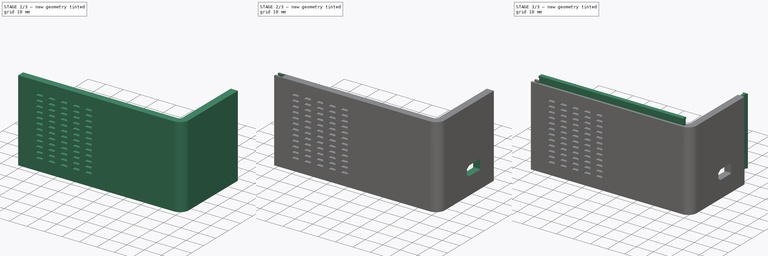
[diagram: build sequence overview — one tinted view per stage of 3, left to right]
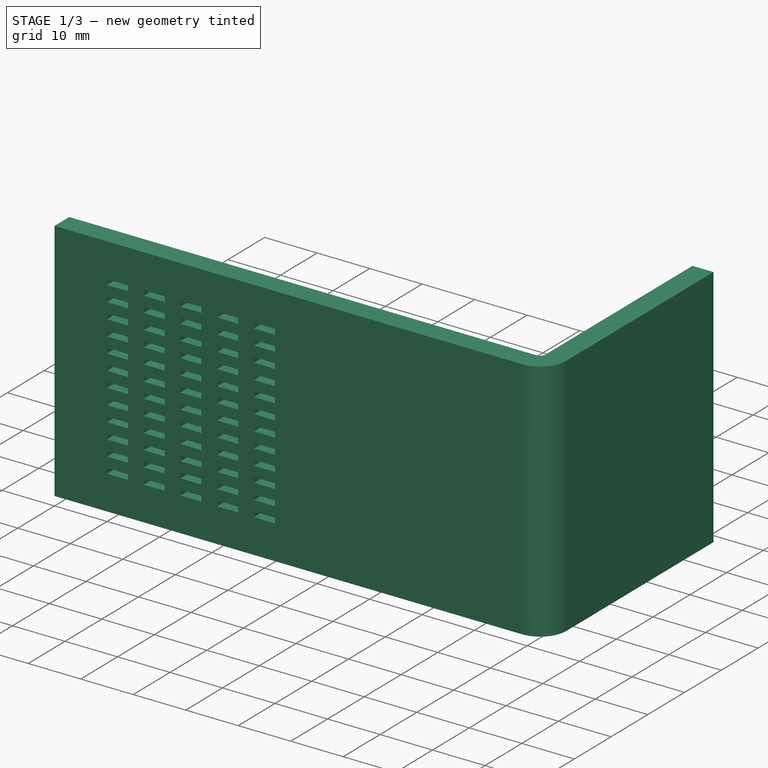
[diagram: stage 1 of 3 — iso view after this stage's code; geometry added in this stage tinted green]
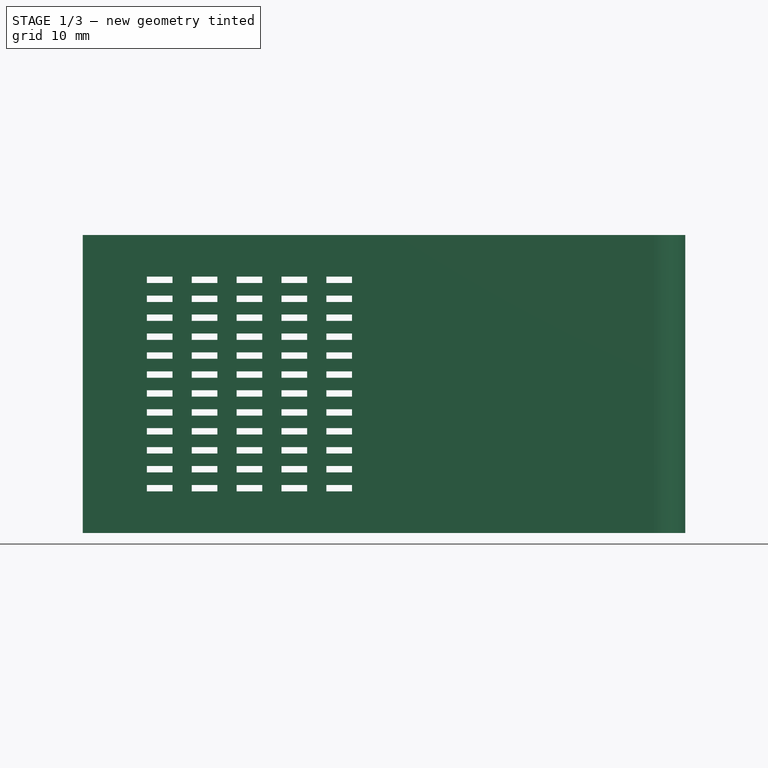
[diagram: stage 1 of 3 — front view after this stage's code; geometry added in this stage tinted green]
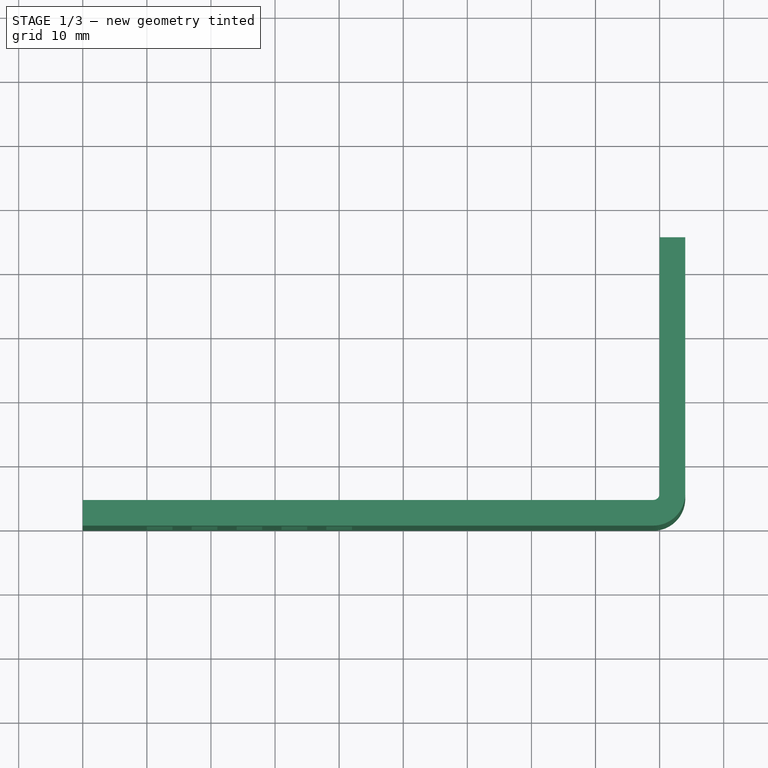
[diagram: stage 1 of 3 — top view after this stage's code; geometry added in this stage tinted green]
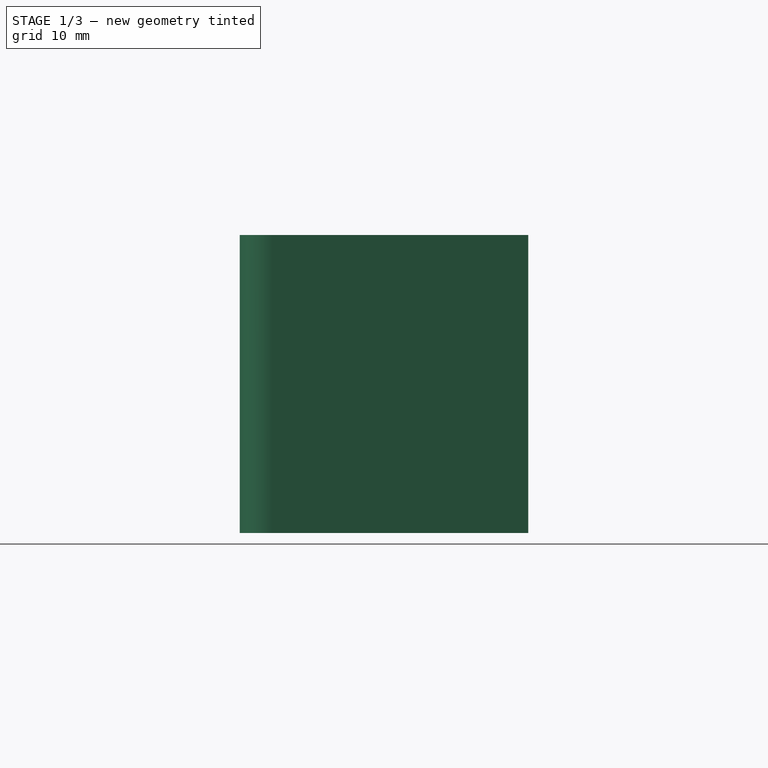
[diagram: stage 1 of 3 — right view after this stage's code; geometry added in this stage tinted green]
FCSTD DOCUMENT  (FreeCAD 1.0R38641 +468 (Git))
Label: EC-Box-Side-L
License: All rights reserved
LicenseURL: https://en.wikipedia.org/wiki/All_rights_reserved
objects: Sketcher::SketchObject×7, PartDesign::Pocket×4, PartDesign::Pad×3, PartDesign::LinearPattern×2, PartDesign::MultiTransform×1, PartDesign::Body×1
note: 42 computed .brp shape members not serialized (recipe doc carries the construction recipe); baked Part::Feature solids carry a one-line shape summary decoded from their .brp

FEATURE [Sketcher::SketchObject] Sketch117  label="side-wall-l"
  ArcFitTolerance = 1e-06
  AttachmentSupport = -> [XY_Plane014]
  FullyConstrained = true
  MakeInternals = false
  MapMode = 5
  sketch-geometry (8):
    g0: LineSegment StartX=0 StartY=0 StartZ=0 EndX=89 EndY=0 EndZ=0
    g1: LineSegment StartX=0 StartY=0 StartZ=0 EndX=0 EndY=4 EndZ=0
    g2: LineSegment StartX=0 StartY=4 StartZ=0 EndX=89 EndY=4 EndZ=0
    g3: ArcOfCircle CenterX=89 CenterY=5 CenterZ=0 NormalX=0 NormalY=0 NormalZ=1 AngleXU=0 Radius=1 StartAngle=4.71239 EndAngle=6.28318
    g4: ArcOfCircle CenterX=89 CenterY=5 CenterZ=0 NormalX=0 NormalY=0 NormalZ=1 AngleXU=0 Radius=5 StartAngle=4.71239 EndAngle=6.28319
    g5: LineSegment StartX=90 StartY=5 StartZ=0 EndX=90 EndY=45 EndZ=0
    g6: LineSegment StartX=94 StartY=5 StartZ=0 EndX=94 EndY=45 EndZ=0
    g7: LineSegment StartX=90 StartY=45 StartZ=0 EndX=94 EndY=45 EndZ=0
  constraints (25):
    c: Distance(g0) = 89
    c: Coincident(g0,g-1)
    c: PointOnObject(g0,g-1)
    c: Distance(g1) = 4
    c: Coincident(g1,g0)
    c: PointOnObject(g1,g-2)
    c: Distance(g2) = 89
    c: Coincident(g2,g1)
    c: Horizontal(g2)
    c: Angle(g3) = 1.5708
    c: Coincident(g3,g2)
    c: Angle(g4) = 1.5708
    c: Coincident(g4,g0)
    c: DistanceX(g3,g3) = 1
    c: DistanceX(g3,g4) = 5
    c: DistanceX(g0,g3) = 90
    c: DistanceY(g4) = 5
    c: Distance(g5) = 40
    c: Coincident(g5,g3)
    c: Vertical(g5)
    c: Distance(g6) = 40
    c: Coincident(g6,g4)
    c: Vertical(g6)
    c: Coincident(g7,g5)
    c: Coincident(g7,g6)
FEATURE [PartDesign::Pad] Pad058
  Direction = (0,0,1)
  Length = 46.5
  Length2 = 10
  Profile = -> Sketch117
  ReferenceAxis = -> Sketch117 [N_Axis]
  Refine = true
  Suppressed = false
  Type = 0
FEATURE [Sketcher::SketchObject] Sketch120  label="mazgal"
  ArcFitTolerance = 1e-06
  AttachmentSupport = -> [XZ_Plane014]
  FullyConstrained = false
  MakeInternals = false
  MapMode = 5
  Placement = pos=(0,0,0) rot=(1,0,0;1.5708rad)
  sketch-geometry (4):
    g0: LineSegment StartX=10 StartY=39 StartZ=0 EndX=10 EndY=40 EndZ=0
    g1: LineSegment StartX=10 StartY=40 StartZ=0 EndX=14 EndY=40 EndZ=0
    g2: LineSegment StartX=14 StartY=40 StartZ=0 EndX=14 EndY=39 EndZ=0
    g3: LineSegment StartX=14 StartY=39 StartZ=0 EndX=10 EndY=39 EndZ=0
  constraints (11):
    c: Coincident(g0,g1)
    c: Coincident(g1,g2)
    c: Coincident(g2,g3)
    c: Coincident(g3,g0)
    c: Vertical(g0)
    c: Vertical(g2)
    c: Horizontal(g1)
    c: Horizontal(g3)
    c: Distance(g0,g2) = 4
    c: Distance(g1,g3) = 1
    c: DistanceY(g-1,g0) = 40
FEATURE [PartDesign::LinearPattern] LinearPattern
  Direction = -> Sketch120 [H_Axis]
  Length = 28
  Mode = 0
  Occurrences = 5
  Offset = 7
  Refine = true
  Suppressed = false
  TransformMode = 0
FEATURE [PartDesign::LinearPattern] LinearPattern001
  Direction = -> Sketch120 [V_Axis]
  Length = 32.5
  Mode = 0
  Occurrences = 12
  Offset = 2.95455
  Refine = true
  Reversed = true
  Suppressed = false
  TransformMode = 0
FEATURE [PartDesign::Pocket] Pocket068
  BaseFeature = -> Pad058
  Direction = (0,1,-2e-16)
  Length = 5
  Length2 = 5
  Profile = -> Sketch120
  ReferenceAxis = -> Sketch120 [N_Axis]
  Refine = true
  Suppressed = false
  Type = 0
FEATURE [PartDesign::MultiTransform] MultiTransform
  BaseFeature = -> Pocket068
  Originals = -> [Pocket068]
  Refine = true
  Suppressed = false
  TransformMode = 0
  Transformations = -> [LinearPattern,LinearPattern001]
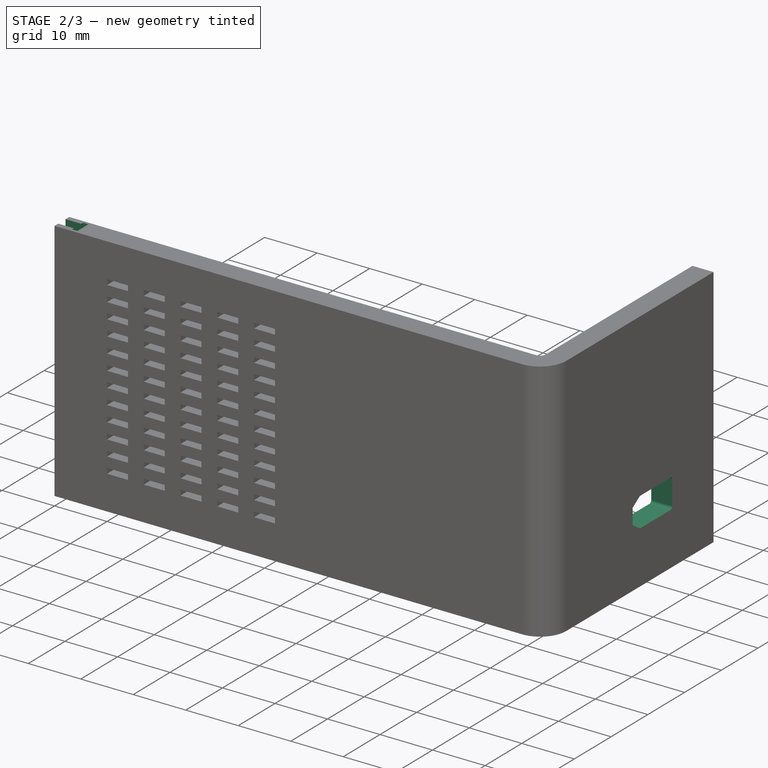
[diagram: stage 2 of 3 — iso view after this stage's code; geometry added in this stage tinted green]
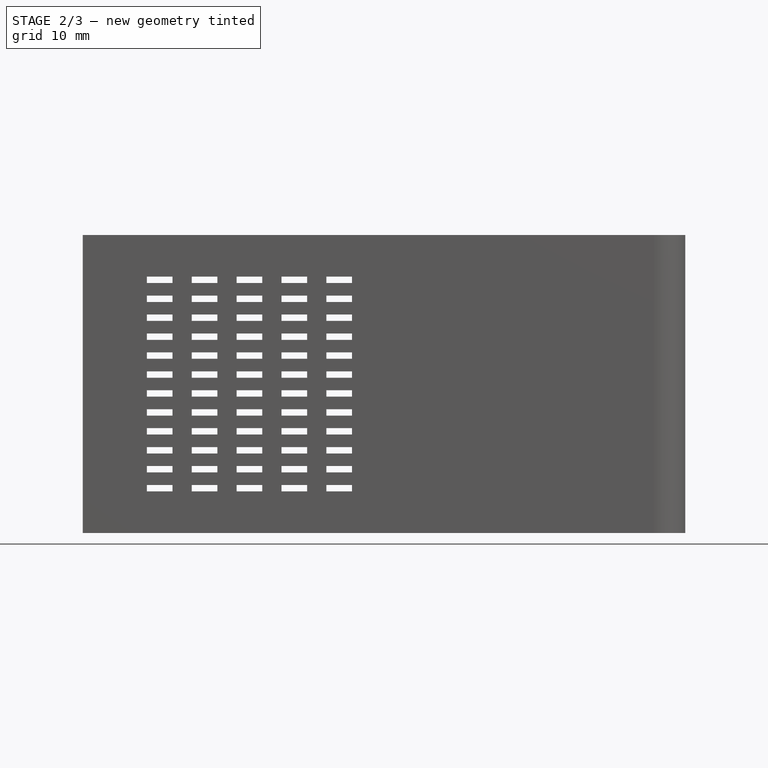
[diagram: stage 2 of 3 — front view after this stage's code; geometry added in this stage tinted green]
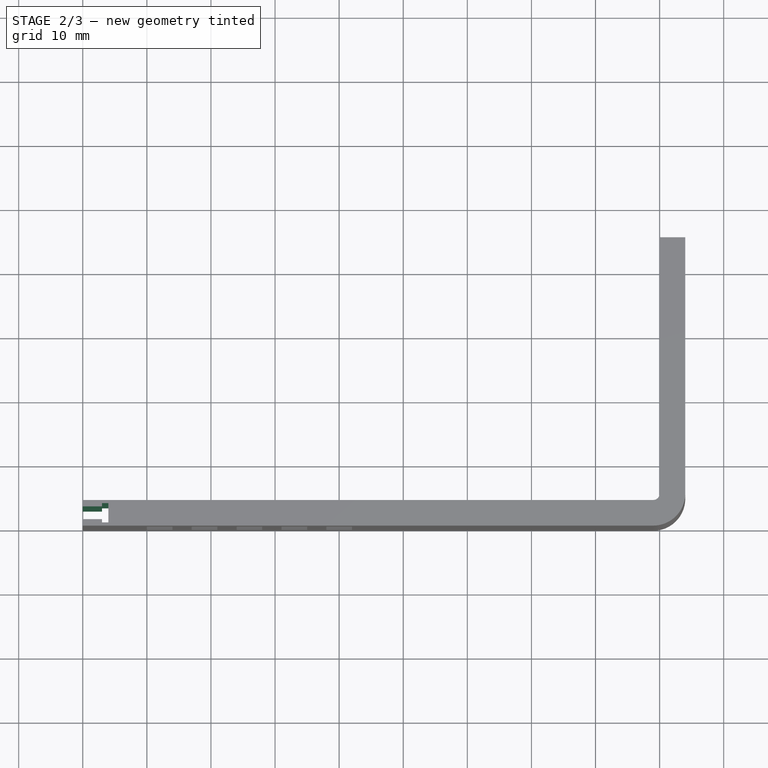
[diagram: stage 2 of 3 — top view after this stage's code; geometry added in this stage tinted green]
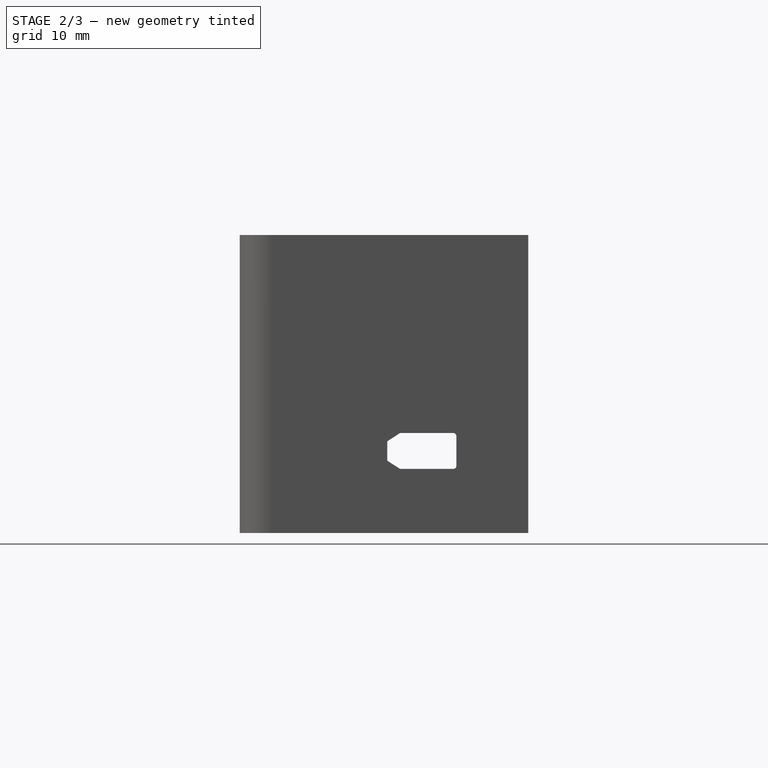
[diagram: stage 2 of 3 — right view after this stage's code; geometry added in this stage tinted green]
FEATURE [Sketcher::SketchObject] Sketch121  label="power-holes"
  ArcFitTolerance = 1e-06
  AttachmentSupport = -> [YZ_Plane014]
  FullyConstrained = true
  MakeInternals = false
  MapMode = 5
  Placement = pos=(0,0,0) rot=(0.57735,0.57735,0.57735;2.0944rad)
  sketch-geometry (10):
    g0: LineSegment StartX=25 StartY=10 StartZ=0 EndX=33.3 EndY=10 EndZ=0
    g1: LineSegment StartX=33.8 StartY=10.5 StartZ=0 EndX=33.8 EndY=15.1 EndZ=0
    g2: LineSegment StartX=33.3 StartY=15.6 StartZ=0 EndX=25 EndY=15.6 EndZ=0
    g3: ArcOfCircle CenterX=33.3 CenterY=15.1 CenterZ=0 NormalX=0 NormalY=0 NormalZ=1 AngleXU=0 Radius=0.5 StartAngle=5e-16 EndAngle=1.5708
    g4: GeomPoint [constr] X=33.8 Y=15.6 Z=0
    g5: ArcOfCircle CenterX=33.3 CenterY=10.5 CenterZ=0 NormalX=0 NormalY=0 NormalZ=1 AngleXU=0 Radius=0.5 StartAngle=4.71239 EndAngle=6.28319
    g6: GeomPoint [constr] X=33.8 Y=10 Z=0
    g7: LineSegment StartX=23 StartY=14.3 StartZ=0 EndX=23 EndY=11.3 EndZ=0
    g8: LineSegment StartX=25 StartY=15.6 StartZ=0 EndX=23 EndY=14.3 EndZ=0
    g9: LineSegment StartX=25 StartY=10 StartZ=0 EndX=23 EndY=11.3 EndZ=0
  constraints (26):
    c: Vertical(g1)
    c: Horizontal(g0)
    c: Horizontal(g2)
    c: PointOnObject(g4,g1)
    c: PointOnObject(g4,g2)
    c: Tangent(g1,g3) = -1.5708
    c: Tangent(g2,g3) = -1.5708
    c: PointOnObject(g6,g0)
    c: PointOnObject(g6,g1)
    c: Tangent(g0,g5) = -1.5708
    c: Tangent(g1,g5) = -1.5708
    c: DistanceY(g3,g2) = 0.5
    c: DistanceY(g0,g5) = 0.5
    c: Distance(g7) = 3
    c: Vertical(g7)
    c: DistanceX(g7,g2) = 2
    c: DistanceX(g7,g0) = 2
    c: DistanceX(g7,g4) = 10.8
    c: DistanceY(g0,g2) = 5.6
    c: DistanceY(g7,g2) = 1.3
    c: Coincident(g8,g2)
    c: Coincident(g8,g7)
    c: Coincident(g9,g0)
    c: Coincident(g9,g7)
    c: DistanceX(g-1,g0) = 25
    c: DistanceY(g-1,g0) = 10
FEATURE [PartDesign::Pocket] Pocket069
  BaseFeature = -> MultiTransform
  Direction = (-1,0,0)
  Length = 5
  Length2 = 5
  Midplane = true
  Profile = -> Sketch121
  ReferenceAxis = -> Sketch121 [N_Axis]
  Refine = true
  Suppressed = false
  Type = 1
FEATURE [Sketcher::SketchObject] Sketch122  label="side-canal"
  ArcFitTolerance = 1e-06
  AttachmentSupport = -> [XY_Plane014]
  FullyConstrained = true
  MakeInternals = false
  MapMode = 5
  sketch-geometry (8):
    g0: LineSegment StartX=3 StartY=3 StartZ=0 EndX=0 EndY=3 EndZ=0
    g1: LineSegment StartX=0 StartY=3 StartZ=0 EndX=0 EndY=1 EndZ=0
    g2: LineSegment StartX=0 StartY=1 StartZ=0 EndX=3 EndY=1 EndZ=0
    g3: LineSegment StartX=3 StartY=1 StartZ=0 EndX=3 EndY=3 EndZ=0
    g4: LineSegment StartX=3 StartY=3.5 StartZ=0 EndX=3 EndY=0.5 EndZ=0
    g5: LineSegment StartX=3 StartY=0.5 StartZ=0 EndX=4 EndY=0.5 EndZ=0
    g6: LineSegment StartX=4 StartY=0.5 StartZ=0 EndX=4 EndY=3.5 EndZ=0
    g7: LineSegment StartX=4 StartY=3.5 StartZ=0 EndX=3 EndY=3.5 EndZ=0
  constraints (24):
    c: Coincident(g0,g1)
    c: Coincident(g1,g2)
    c: Coincident(g2,g3)
    c: Coincident(g3,g0)
    c: Horizontal(g0)
    c: Horizontal(g2)
    c: Vertical(g1)
    c: Vertical(g3)
    c: Distance(g1,g3) = 3
    c: Distance(g0,g2) = 2
    c: PointOnObject(g1,g-2)
    c: DistanceY(g-1,g1) = 1
    c: Coincident(g4,g5)
    c: Coincident(g5,g6)
    c: Coincident(g6,g7)
    c: Coincident(g7,g4)
    c: Vertical(g4)
    c: Vertical(g6)
    c: Horizontal(g5)
    c: Horizontal(g7)
    c: Distance(g4,g6) = 1
    c: Distance(g5,g7) = 3
    c: DistanceX(g0,g4) = 0
    c: DistanceY(g0,g4) = 0.5
FEATURE [PartDesign::Pocket] Pocket070
  BaseFeature = -> Pocket069
  Direction = (0,0,-1)
  Length = 70.9
  Length2 = 5
  Profile = -> Sketch122
  ReferenceAxis = -> Sketch122 [N_Axis]
  Refine = true
  Reversed = true
  Suppressed = false
  Type = 0
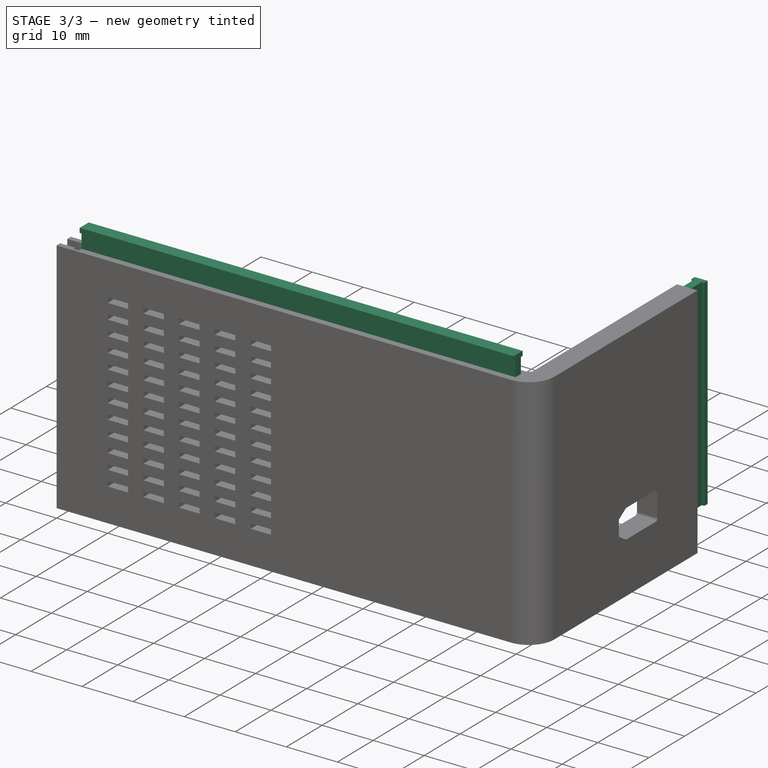
[diagram: stage 3 of 3 — iso view after this stage's code; geometry added in this stage tinted green]
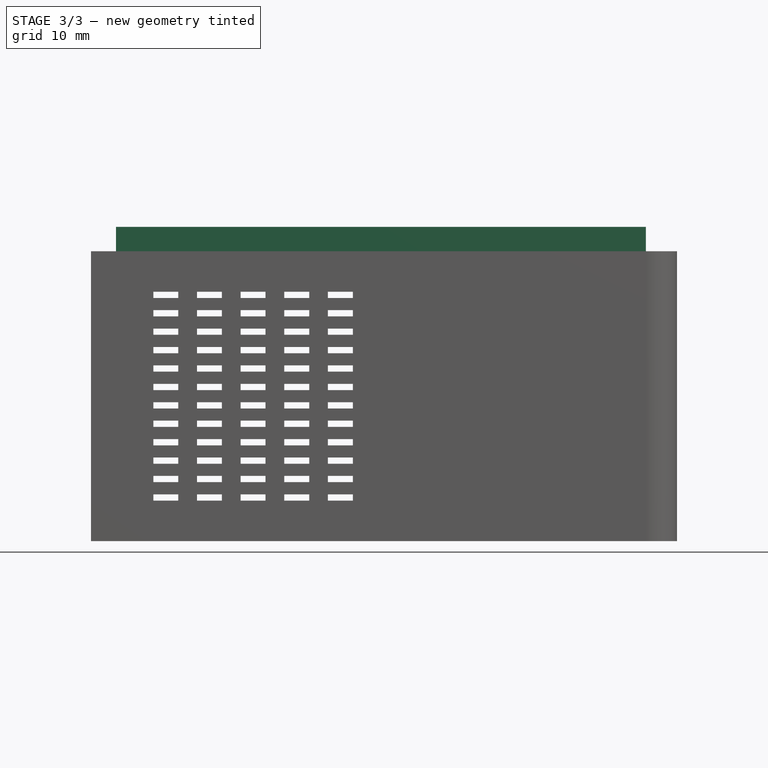
[diagram: stage 3 of 3 — front view after this stage's code; geometry added in this stage tinted green]
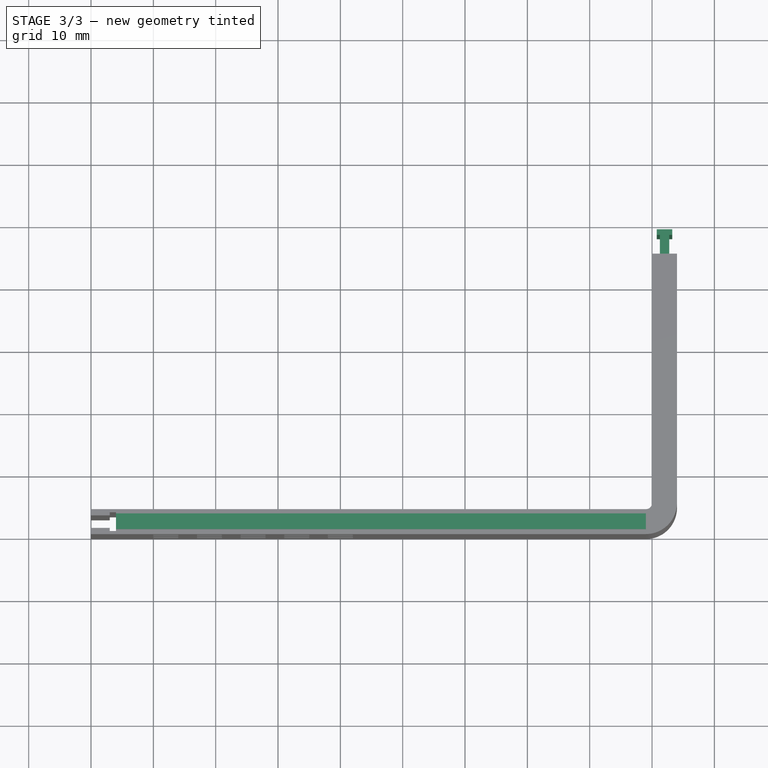
[diagram: stage 3 of 3 — top view after this stage's code; geometry added in this stage tinted green]
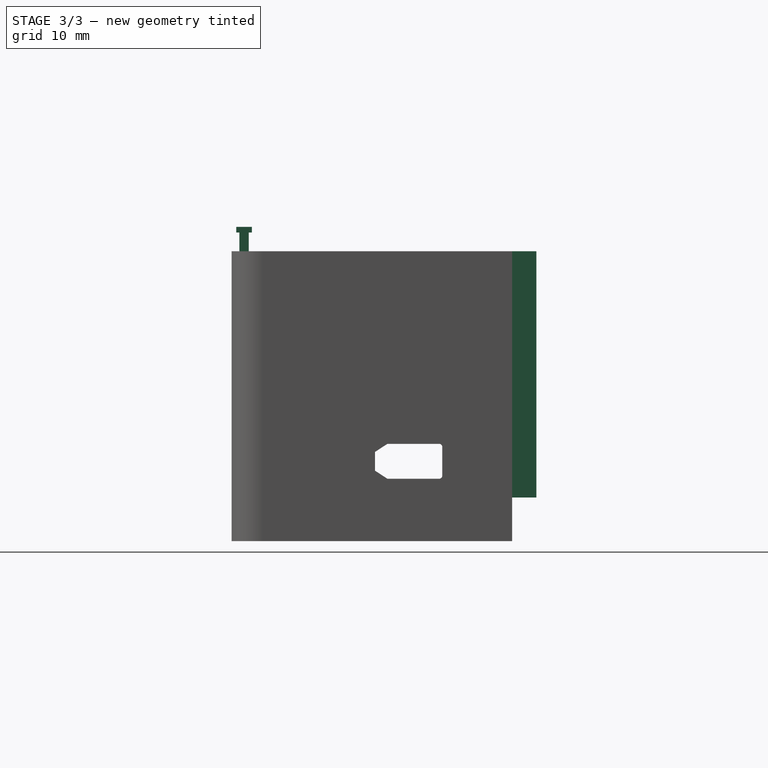
[diagram: stage 3 of 3 — right view after this stage's code; geometry added in this stage tinted green]
FEATURE [Sketcher::SketchObject] Sketch  label="front-trail"
  ArcFitTolerance = 1e-06
  AttachmentSupport = -> [XY_Plane014]
  FullyConstrained = true
  MakeInternals = false
  MapMode = 5
  sketch-geometry (8):
    g0: LineSegment StartX=91.25 StartY=48 StartZ=0 EndX=91.25 EndY=45 EndZ=0
    g1: LineSegment StartX=91.25 StartY=45 StartZ=0 EndX=92.75 EndY=45 EndZ=0
    g2: LineSegment StartX=92.75 StartY=45 StartZ=0 EndX=92.75 EndY=48 EndZ=0
    g3: LineSegment StartX=92.75 StartY=48 StartZ=0 EndX=91.25 EndY=48 EndZ=0
    g4: LineSegment StartX=93.25 StartY=48.9 StartZ=0 EndX=90.75 EndY=48.9 EndZ=0
    g5: LineSegment StartX=90.75 StartY=48.9 StartZ=0 EndX=90.75 EndY=48 EndZ=0
    g6: LineSegment StartX=90.75 StartY=48 StartZ=0 EndX=93.25 EndY=48 EndZ=0
    g7: LineSegment StartX=93.25 StartY=48 StartZ=0 EndX=93.25 EndY=48.9 EndZ=0
  constraints (24):
    c: Coincident(g0,g1)
    c: Coincident(g1,g2)
    c: Coincident(g2,g3)
    c: Coincident(g3,g0)
    c: Vertical(g0)
    c: Vertical(g2)
    c: Horizontal(g1)
    c: Horizontal(g3)
    c: Distance(g0,g2) = 1.5
    c: Distance(g1,g3) = 3
    c: Coincident(g4,g5)
    c: Coincident(g5,g6)
    c: Coincident(g6,g7)
    c: Coincident(g7,g4)
    c: Horizontal(g4)
    c: Horizontal(g6)
    c: Vertical(g5)
    c: Vertical(g7)
    c: Distance(g5,g7) = 2.5
    c: Distance(g4,g6) = 0.9
    c: DistanceX(g4,g0) = 0.5
    c: DistanceY(g6,g2) = 0
    c: DistanceY(g-1,g0) = 45
    c: DistanceX(g-1,g0) = 91.25
FEATURE [Sketcher::SketchObject] Sketch123  label="front-space"
  ArcFitTolerance = 1e-06
  AttachmentSupport = -> [XY_Plane014]
  FullyConstrained = true
  MakeInternals = false
  MapMode = 5
  sketch-geometry (4):
    g0: LineSegment StartX=93 StartY=45 StartZ=0 EndX=91 EndY=45 EndZ=0
    g1: LineSegment StartX=91 StartY=45 StartZ=0 EndX=91 EndY=10 EndZ=0
    g2: LineSegment StartX=91 StartY=10 StartZ=0 EndX=93 EndY=10 EndZ=0
    g3: LineSegment StartX=93 StartY=10 StartZ=0 EndX=93 EndY=45 EndZ=0
  constraints (12):
    c: Coincident(g0,g1)
    c: Coincident(g1,g2)
    c: Coincident(g2,g3)
    c: Coincident(g3,g0)
    c: Horizontal(g0)
    c: Horizontal(g2)
    c: Vertical(g1)
    c: Vertical(g3)
    c: Distance(g1,g3) = 2
    c: Distance(g0,g2) = 35
    c: DistanceY(g-1,g1) = 10
    c: DistanceX(g-1,g1) = 91
FEATURE [PartDesign::Pocket] Pocket071
  BaseFeature = -> Pocket070
  Direction = (0,0,-1)
  Length = 7
  Length2 = 5
  Profile = -> Sketch123
  ReferenceAxis = -> Sketch123 [N_Axis]
  Refine = true
  Reversed = true
  Suppressed = false
  Type = 0
FEATURE [Sketcher::SketchObject] Sketch119  label="top-trail"
  ArcFitTolerance = 1e-06
  AttachmentSupport = -> [YZ_Plane014]
  FullyConstrained = true
  MakeInternals = false
  MapMode = 5
  Placement = pos=(0,0,0) rot=(0.57735,0.57735,0.57735;2.0944rad)
  sketch-geometry (8):
    g0: LineSegment StartX=1.25 StartY=49.5 StartZ=0 EndX=1.25 EndY=46.5 EndZ=0
    g1: LineSegment StartX=1.25 StartY=46.5 StartZ=0 EndX=2.75 EndY=46.5 EndZ=0
    g2: LineSegment StartX=2.75 StartY=46.5 StartZ=0 EndX=2.75 EndY=49.5 EndZ=0
    g3: LineSegment StartX=2.75 StartY=49.5 StartZ=0 EndX=1.25 EndY=49.5 EndZ=0
    g4: LineSegment StartX=0.75 StartY=50.4 StartZ=0 EndX=0.75 EndY=49.5 EndZ=0
    g5: LineSegment StartX=0.75 StartY=49.5 StartZ=0 EndX=3.25 EndY=49.5 EndZ=0
    g6: LineSegment StartX=3.25 StartY=49.5 StartZ=0 EndX=3.25 EndY=50.4 EndZ=0
    g7: LineSegment StartX=3.25 StartY=50.4 StartZ=0 EndX=0.75 EndY=50.4 EndZ=0
  constraints (24):
    c: Coincident(g0,g1)
    c: Coincident(g1,g2)
    c: Coincident(g2,g3)
    c: Coincident(g3,g0)
    c: Vertical(g0)
    c: Vertical(g2)
    c: Horizontal(g1)
    c: Horizontal(g3)
    c: Distance(g0,g2) = 1.5
    c: Distance(g1,g3) = 3
    c: Coincident(g4,g5)
    c: Coincident(g5,g6)
    c: Coincident(g6,g7)
    c: Coincident(g7,g4)
    c: Vertical(g4)
    c: Vertical(g6)
    c: Horizontal(g5)
    c: Horizontal(g7)
    c: Distance(g4,g6) = 2.5
    c: Distance(g5,g7) = 0.9
    c: DistanceY(g0,g4) = 0
    c: DistanceY(g-1,g0) = 46.5
    c: DistanceX(g-1,g0) = 1.25
    c: DistanceX(g2,g5) = 0.5
FEATURE [PartDesign::Pad] Pad
  BaseFeature = -> Pocket071
  Direction = (1,0,0)
  Length = 89
  Length2 = -4
  Profile = -> Sketch119
  ReferenceAxis = -> Sketch119 [N_Axis]
  Refine = true
  Suppressed = false
  Type = 4
FEATURE [PartDesign::Pad] Pad059
  BaseFeature = -> Pad
  Direction = (0,0,1)
  Length = 46.5
  Length2 = -7
  Profile = -> Sketch
  ReferenceAxis = -> Sketch [N_Axis]
  Refine = true
  Suppressed = false
  Type = 4
FEATURE [PartDesign::Body] Body014  label="EC-Box-Side-L"
  AllowCompound = false
  Group = -> [Sketch117,Pad058,Sketch120,Pocket068,MultiTransform,LinearPattern,LinearPattern001,Sketch121,Pocket069,Sketch122,Pocket070,Sketch,Sketch123,Pocket071,Sketch119,Pad,Pad059]
  Origin = -> Origin014
  Tip = -> Pad059
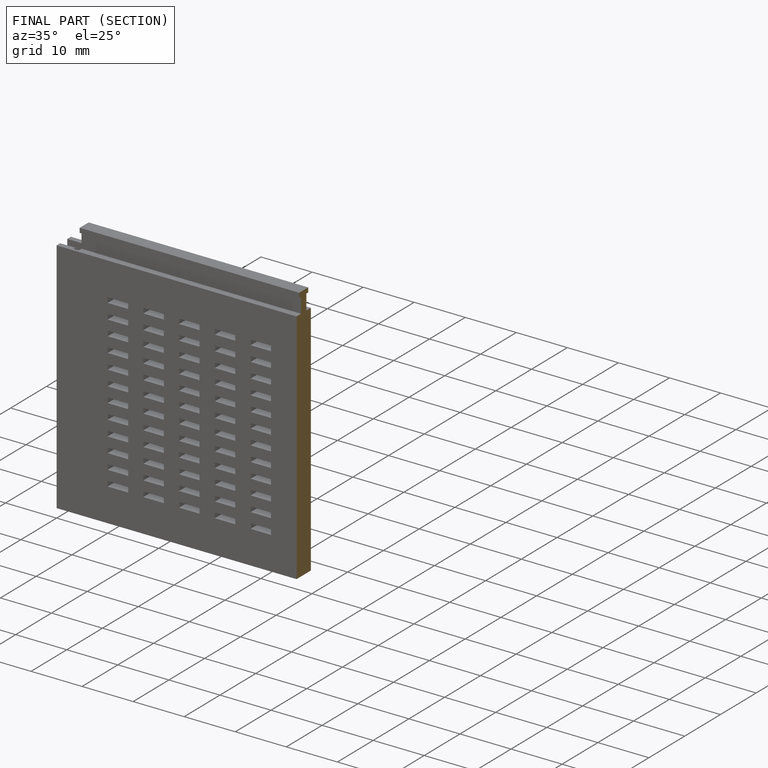
[diagram: finished part — half-section view (interior)]
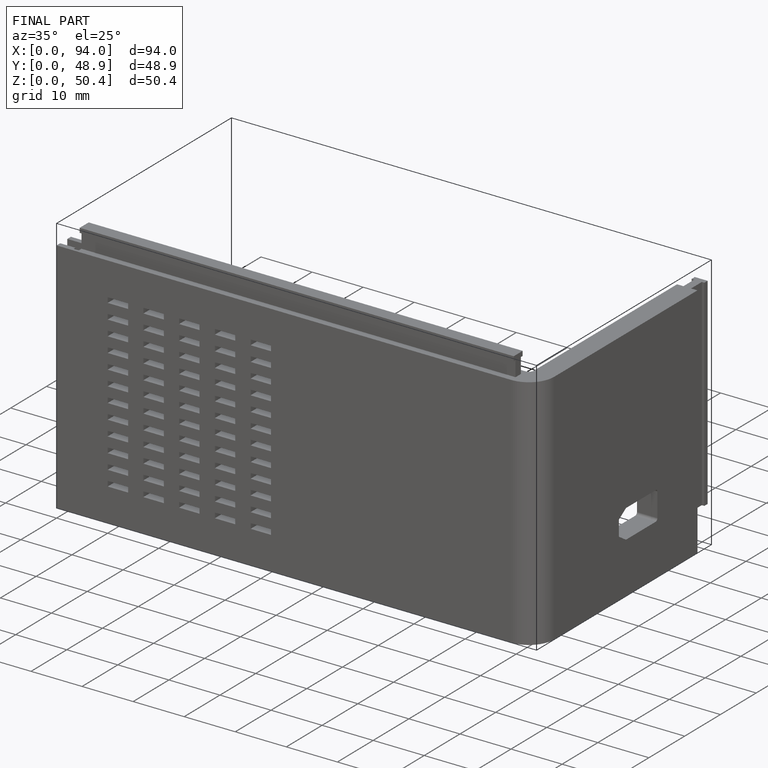
[diagram: finished part — iso view with bounding-box wireframe]
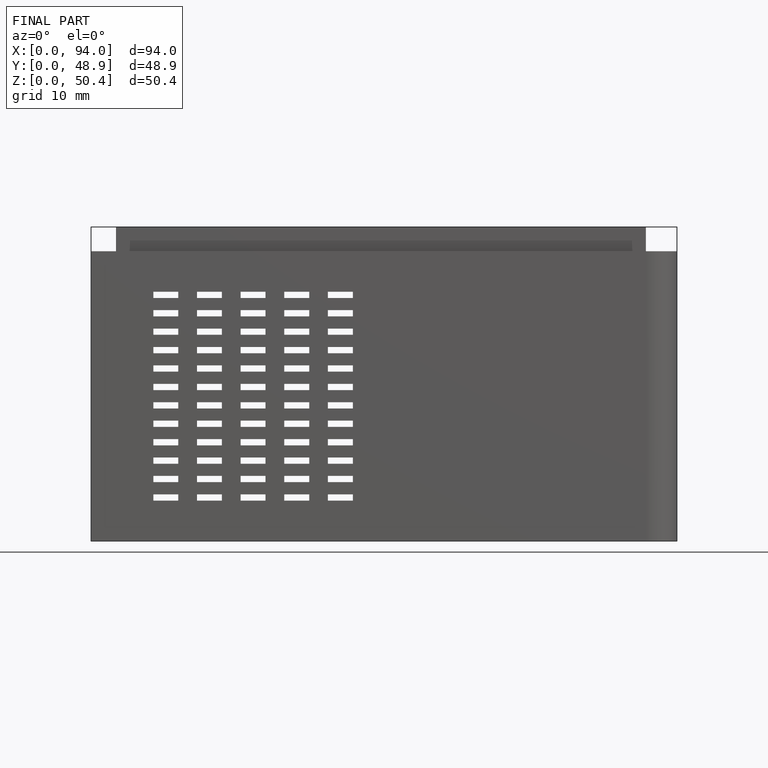
[diagram: finished part — front view with bounding-box wireframe]
